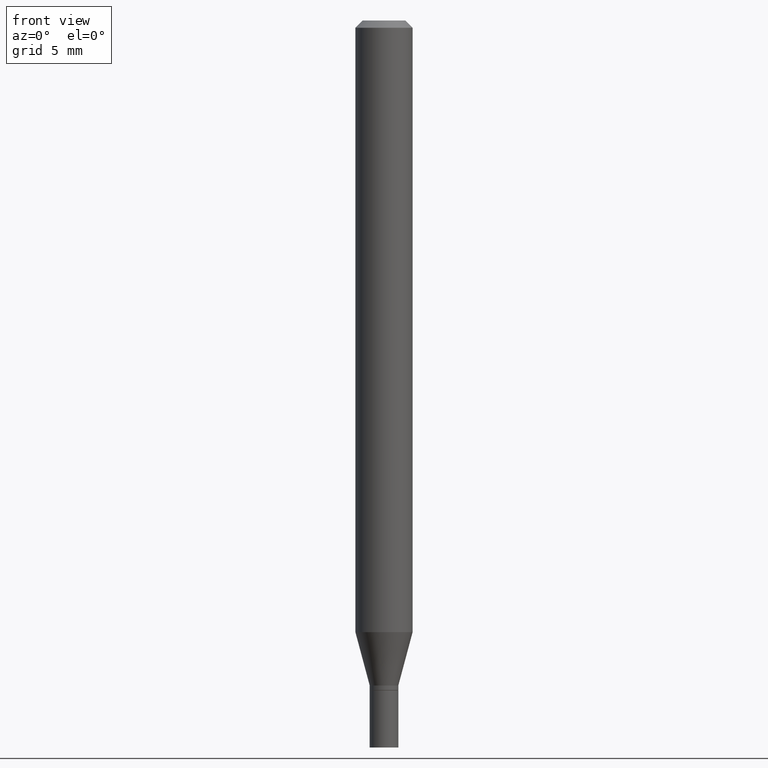
[diagram: clean part render]
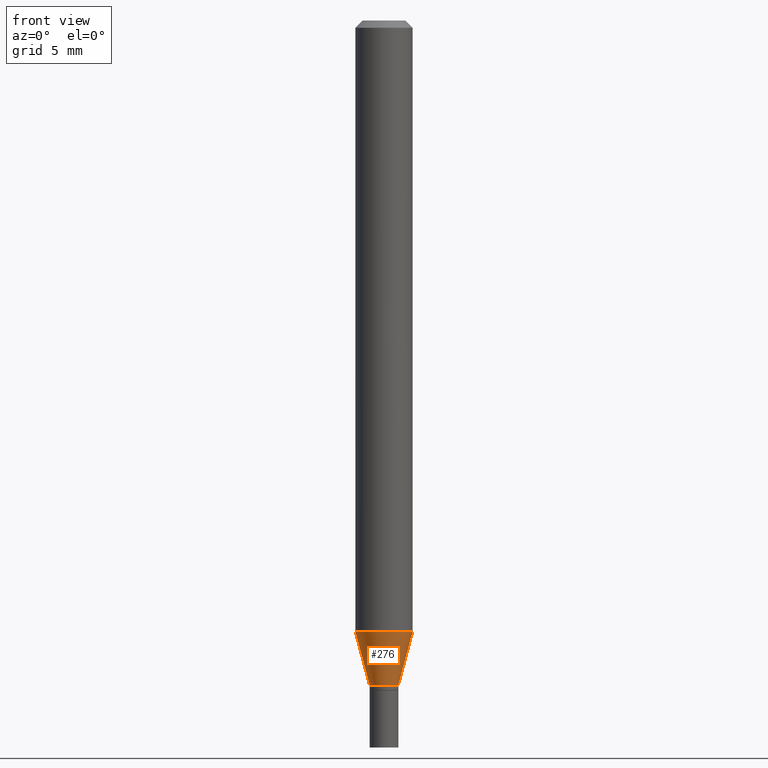
[diagram: same view with one face highlighted and labeled with its STEP entity id]
A machine part, front view. The second image highlights one B-rep face of the part: STEP entity #276.
In plain terms, the highlighted conical surface has half-angle 15 deg.
Its self-contained STEP definition (entity closure, byte-faithful):
#4 = DIRECTION ( 'NONE',  ( -2.445468806185136597E-29, 3.491481338843145583E-15, 1.000000000000000000 ) ) ;
#7 = DIRECTION ( 'NONE',  ( 1.000000000000000000, -6.982962677686281699E-15, 0.000000000000000000 ) ) ;
#14 = ORIENTED_EDGE ( 'NONE', *, *, #361, .F. ) ;
#25 = CARTESIAN_POINT ( 'NONE',  ( 0.05904999999999999832, -4.818259963378055761E-15, -1.261904501176718707 ) ) ;
#48 = CARTESIAN_POINT ( 'NONE',  ( -0.02954999999999991661, -4.283343775135014344E-15, -1.372000000000000108 ) ) ;
#49 = CARTESIAN_POINT ( 'NONE',  ( -0.05904999999999999832, -3.986340531794342137E-15, -1.261904501176718707 ) ) ;
#52 = ORIENTED_EDGE ( 'NONE', *, *, #380, .T. ) ;
#91 = VECTOR ( 'NONE', #299, 39.37007874015748854 ) ;
#98 = AXIS2_PLACEMENT_3D ( 'NONE', #411, #363, #7 ) ;
#115 = ORIENTED_EDGE ( 'NONE', *, *, #139, .F. ) ;
#125 = CARTESIAN_POINT ( 'NONE',  ( 0.02954999999999991661, -4.996658944018425519E-15, -1.372000000000000108 ) ) ;
#129 = CONICAL_SURFACE ( 'NONE', #98, 0.02954999999999991661, 0.2617993877991512952 ) ;
#139 = EDGE_CURVE ( 'NONE', #221, #360, #423, .T. ) ;
#152 = LINE ( 'NONE', #231, #91 ) ;
#195 = VECTOR ( 'NONE', #343, 39.37007874015748854 ) ;
#221 = VERTEX_POINT ( 'NONE', #49 ) ;
#231 = CARTESIAN_POINT ( 'NONE',  ( 0.02954999999999991661, -4.996658944018425519E-15, -1.372000000000000108 ) ) ;
#241 = VERTEX_POINT ( 'NONE', #48 ) ;
#242 = LINE ( 'NONE', #452, #195 ) ;
#256 = VERTEX_POINT ( 'NONE', #125 ) ;
#264 = AXIS2_PLACEMENT_3D ( 'NONE', #388, #417, #384 ) ;
#276 = ADVANCED_FACE ( 'NONE', ( #337 ), #129, .T. ) ;
#277 = EDGE_CURVE ( 'NONE', #256, #360, #152, .T. ) ;
#299 = DIRECTION ( 'NONE',  ( 0.2588190451025225713, 1.565188264969612304E-15, 0.9659258262890678681 ) ) ;
#334 = CARTESIAN_POINT ( 'NONE',  ( 3.085948094012280841E-29, -4.405916017260681630E-15, -1.261904501176718707 ) ) ;
#336 = ORIENTED_EDGE ( 'NONE', *, *, #277, .T. ) ;
#337 = FACE_OUTER_BOUND ( 'NONE', #404, .T. ) ;
#343 = DIRECTION ( 'NONE',  ( -0.2588190451025225713, 5.211531920934557353E-15, 0.9659258262890678681 ) ) ;
#360 = VERTEX_POINT ( 'NONE', #25 ) ;
#361 = EDGE_CURVE ( 'NONE', #241, #221, #242, .T. ) ;
#363 = DIRECTION ( 'NONE',  ( -2.445468806185136597E-29, 3.491481338843145583E-15, 1.000000000000000000 ) ) ;
#380 = EDGE_CURVE ( 'NONE', #241, #256, #457, .T. ) ;
#384 = DIRECTION ( 'NONE',  ( 1.000000000000000000, -6.982962677686281699E-15, 0.000000000000000000 ) ) ;
#388 = CARTESIAN_POINT ( 'NONE',  ( 3.355183202086007133E-29, -4.790312396892795908E-15, -1.372000000000000108 ) ) ;
#402 = AXIS2_PLACEMENT_3D ( 'NONE', #334, #4, #403 ) ;
#403 = DIRECTION ( 'NONE',  ( 1.000000000000000000, -6.982962677686273021E-15, 0.000000000000000000 ) ) ;
#404 = EDGE_LOOP ( 'NONE', ( #14, #52, #336, #115 ) ) ;
#411 = CARTESIAN_POINT ( 'NONE',  ( 3.355183202086007133E-29, -4.790312396892795908E-15, -1.372000000000000108 ) ) ;
#417 = DIRECTION ( 'NONE',  ( -2.445468806185136597E-29, 3.491481338843145583E-15, 1.000000000000000000 ) ) ;
#423 = CIRCLE ( 'NONE', #402, 0.05904999999999999832 ) ;
#452 = CARTESIAN_POINT ( 'NONE',  ( -0.02954999999999991661, -4.580347018475686551E-15, -1.372000000000000108 ) ) ;
#457 = CIRCLE ( 'NONE', #264, 0.02954999999999991661 ) ;